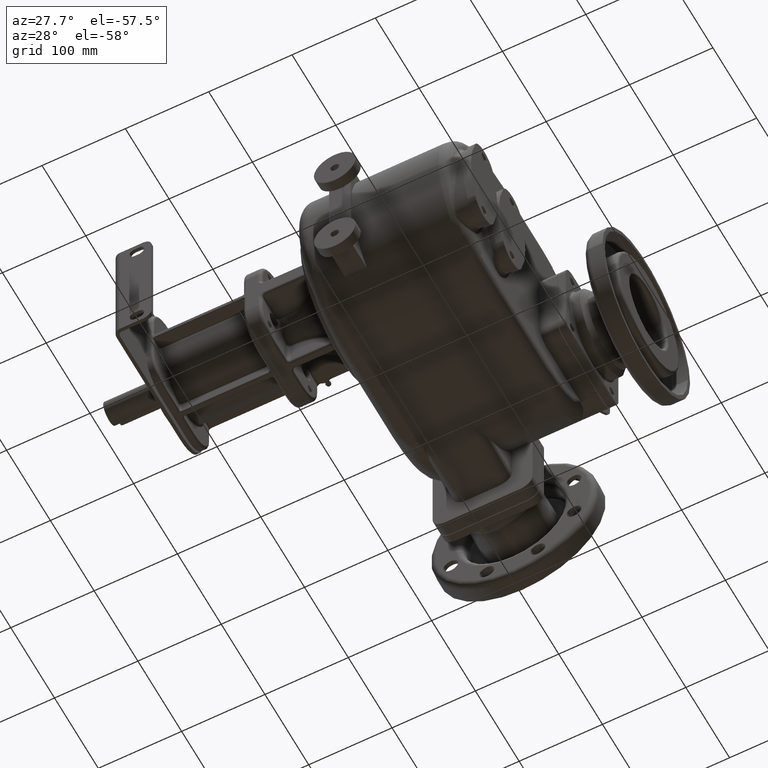
[diagram: clean part render]
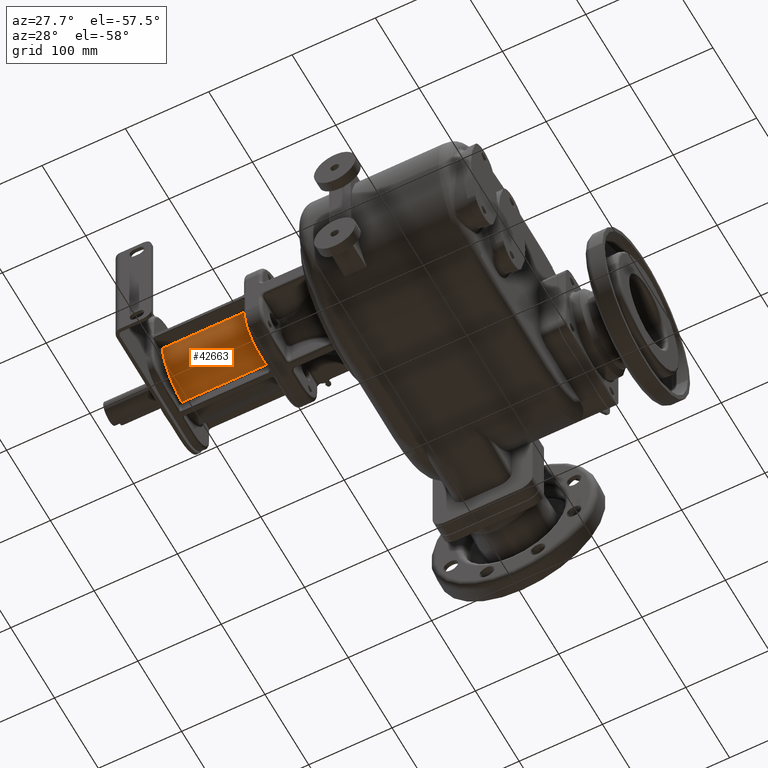
[diagram: same view with one face highlighted and labeled with its STEP entity id]
A machine part, auxiliary view. The second image highlights one B-rep face of the part: STEP entity #42663.
In plain terms, the highlighted cylindrical surface (partial cylindrical patch) has radius 50 mm, axis along (-1, 0, 0).
Its self-contained STEP definition (entity closure, byte-faithful):
#15266=CARTESIAN_POINT('',(-2.5E2,1.2E2,0.E0));
#15267=DIRECTION('',(1.E0,0.E0,0.E0));
#15268=DIRECTION('',(0.E0,-9.943907028037E-1,-1.057692307692E-1));
#15269=AXIS2_PLACEMENT_3D('',#15266,#15267,#15268);
#15271=CARTESIAN_POINT('',(-2.5E2,1.147115384609E2,-4.971953514590E1));
#15322=DIRECTION('',(1.E0,3.501164499932E-12,3.724166944329E-13));
#15323=VECTOR('',#15322,1.02E2);
#15324=CARTESIAN_POINT('',(-2.5E2,7.028046485410E1,-5.288461539069E0));
#15325=LINE('',#15324,#15323);
#15326=DIRECTION('',(-1.E0,-3.724079868013E-13,-3.501512805194E-12));
#15327=VECTOR('',#15326,1.02E2);
#15328=CARTESIAN_POINT('',(-1.48E2,1.147115384610E2,-4.971953514554E1));
#15329=LINE('',#15328,#15327);
#15330=CARTESIAN_POINT('',(-1.48E2,7.028046485446E1,-5.288461539031E0));
#15407=CARTESIAN_POINT('',(-1.48E2,1.2E2,0.E0));
#15408=DIRECTION('',(-1.E0,0.E0,0.E0));
#15409=DIRECTION('',(0.E0,-1.057692307692E-1,-9.943907028037E-1));
#15410=AXIS2_PLACEMENT_3D('',#15407,#15408,#15409);
#19004=VERTEX_POINT('',#15330);
#19005=CARTESIAN_POINT('',(-2.5E2,7.028046485410E1,-5.288461539069E0));
#19006=VERTEX_POINT('',#19005);
#19026=VERTEX_POINT('',#15271);
#19027=CARTESIAN_POINT('',(-1.48E2,1.147115384610E2,-4.971953514554E1));
#19028=VERTEX_POINT('',#19027);
#42650=CARTESIAN_POINT('',(-1.231E2,1.2E2,0.E0));
#42651=DIRECTION('',(-1.E0,0.E0,0.E0));
#42652=DIRECTION('',(0.E0,-1.E0,0.E0));
#42653=AXIS2_PLACEMENT_3D('',#42650,#42651,#42652);
#42654=CYLINDRICAL_SURFACE('',#42653,5.E1);
#42655=ORIENTED_EDGE('',*,*,#42641,.T.);
#42657=ORIENTED_EDGE('',*,*,#42656,.F.);
#42659=ORIENTED_EDGE('',*,*,#42658,.T.);
#42660=ORIENTED_EDGE('',*,*,#42499,.F.);
#42661=EDGE_LOOP('',(#42655,#42657,#42659,#42660));
#42662=FACE_OUTER_BOUND('',#42661,.F.);
#42663=ADVANCED_FACE('',(#42662),#42654,.T.);
#15270=CIRCLE('',#15269,5.E1);
#15411=CIRCLE('',#15410,5.E1);
#42499=EDGE_CURVE('',#19006,#19026,#15270,.T.);
#42641=EDGE_CURVE('',#19006,#19004,#15325,.T.);
#42656=EDGE_CURVE('',#19028,#19004,#15411,.T.);
#42658=EDGE_CURVE('',#19028,#19026,#15329,.T.);